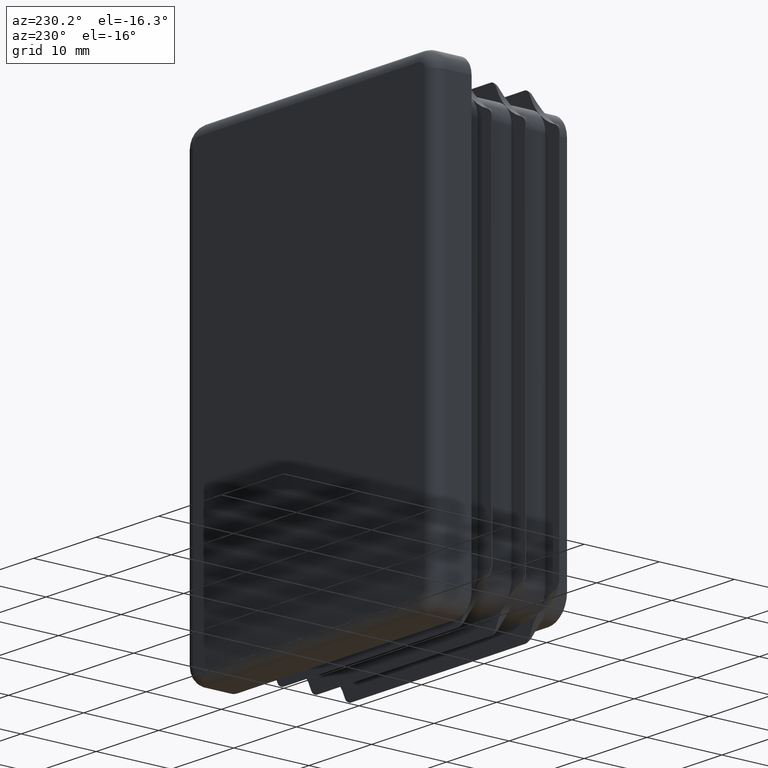
[diagram: clean part render]
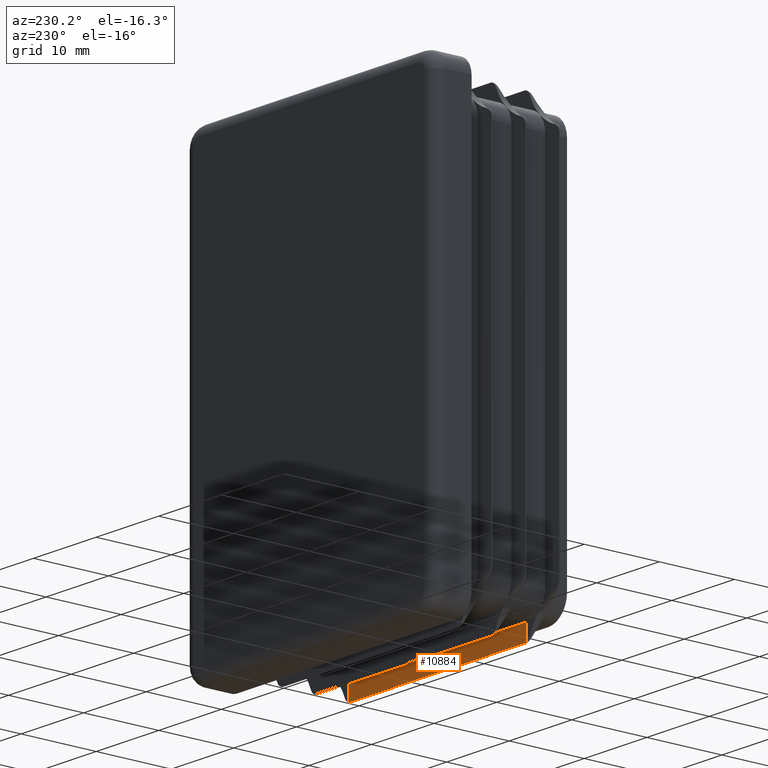
[diagram: same view with one face highlighted and labeled with its STEP entity id]
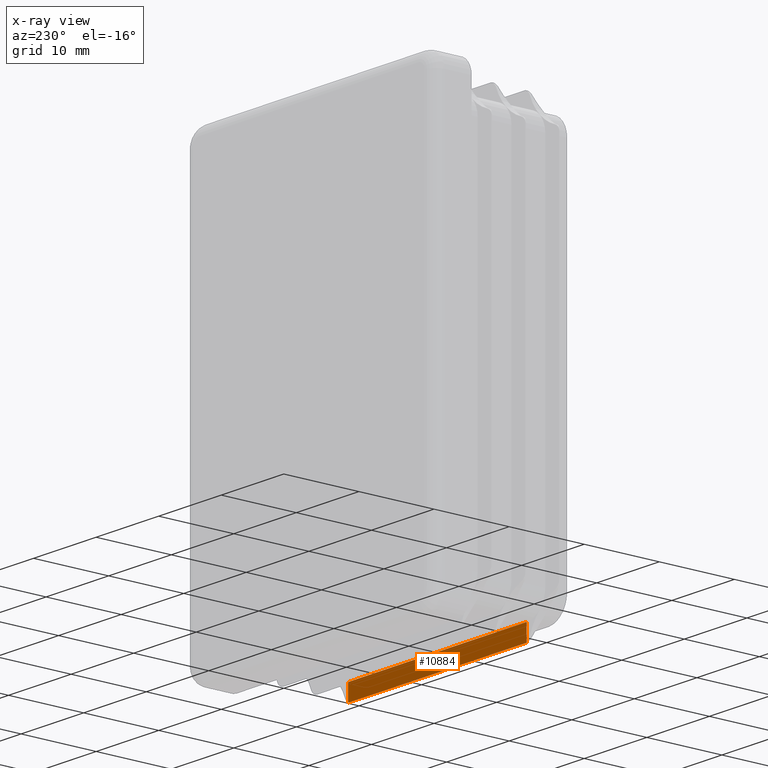
[diagram: x-ray of the same camera — body ghosted, the highlighted face saturated]
A machine part, auxiliary view. The second image highlights one B-rep face of the part: STEP entity #10884.
The next image is the same camera in x-ray: the body ghosted, the highlighted face saturated — about 0% of this face is hidden behind the body in this view.
In plain terms, the highlighted planar face has unit normal (0, -1, 0).
Its self-contained STEP definition (entity closure, byte-faithful):
#717 = EDGE_CURVE ( 'NONE', #15780, #12462, #8409, .T. ) ;
#939 = CARTESIAN_POINT ( 'NONE',  ( 14.24999999999999112, -12.10000000000000142, -27.25000000000008882 ) ) ;
#943 = ORIENTED_EDGE ( 'NONE', *, *, #9074, .T. ) ;
#1005 = DIRECTION ( 'NONE',  ( 0.000000000000000000, -1.000000000000000000, 0.000000000000000000 ) ) ;
#1429 = CIRCLE ( 'NONE', #18798, 1.000000000000000888 ) ;
#1559 = CARTESIAN_POINT ( 'NONE',  ( 14.24999999999999112, -12.10000000000000142, -27.25000000000008882 ) ) ;
#1872 = ORIENTED_EDGE ( 'NONE', *, *, #5895, .F. ) ;
#1974 = DIRECTION ( 'NONE',  ( -1.000000000000000000, 0.000000000000000000, 2.434699615406044232E-16 ) ) ;
#2178 = VERTEX_POINT ( 'NONE', #14565 ) ;
#2549 = LINE ( 'NONE', #8055, #17851 ) ;
#2615 = AXIS2_PLACEMENT_3D ( 'NONE', #939, #1005, #3898 ) ;
#3898 = DIRECTION ( 'NONE',  ( 0.000000000000000000, -0.000000000000000000, -1.000000000000000000 ) ) ;
#4796 = EDGE_CURVE ( 'NONE', #14703, #10340, #1429, .T. ) ;
#5393 = VECTOR ( 'NONE', #9201, 1000.000000000000000 ) ;
#5709 = ORIENTED_EDGE ( 'NONE', *, *, #15582, .T. ) ;
#5895 = EDGE_CURVE ( 'NONE', #12462, #2178, #2549, .T. ) ;
#6339 = LINE ( 'NONE', #11102, #8187 ) ;
#6505 = CARTESIAN_POINT ( 'NONE',  ( -14.25000000000001599, -12.10000000000000142, -27.25000000000008171 ) ) ;
#7155 = DIRECTION ( 'NONE',  ( -6.938893903907222067E-15, 0.000000000000000000, -1.000000000000000000 ) ) ;
#7401 = DIRECTION ( 'NONE',  ( -0.000000000000000000, -1.000000000000000000, 0.000000000000000000 ) ) ;
#8022 = CIRCLE ( 'NONE', #17617, 1.000000000000000888 ) ;
#8055 = CARTESIAN_POINT ( 'NONE',  ( 14.24999999999999112, -12.10000000000000142, -27.25000000000008882 ) ) ;
#8111 = DIRECTION ( 'NONE',  ( -1.000000000000000000, 0.000000000000000000, 2.434699615406044232E-16 ) ) ;
#8187 = VECTOR ( 'NONE', #8111, 1000.000000000000000 ) ;
#8193 = PLANE ( 'NONE',  #2615 ) ;
#8409 = LINE ( 'NONE', #1559, #5393 ) ;
#8488 = VERTEX_POINT ( 'NONE', #18477 ) ;
#8902 = DIRECTION ( 'NONE',  ( 0.000000000000000000, 0.000000000000000000, -1.000000000000000000 ) ) ;
#9074 = EDGE_CURVE ( 'NONE', #15780, #8488, #8022, .T. ) ;
#9201 = DIRECTION ( 'NONE',  ( 3.576749435003726573E-16, -0.000000000000000000, 1.000000000000000000 ) ) ;
#10340 = VERTEX_POINT ( 'NONE', #16397 ) ;
#10884 = ADVANCED_FACE ( 'NONE', ( #13204 ), #8193, .F. ) ;
#11050 = VECTOR ( 'NONE', #18415, 1000.000000000000000 ) ;
#11102 = CARTESIAN_POINT ( 'NONE',  ( 14.24999999999998934, -12.10000000000000142, -29.45000000000010232 ) ) ;
#11173 = EDGE_CURVE ( 'NONE', #14703, #2178, #14991, .T. ) ;
#11639 = DIRECTION ( 'NONE',  ( 0.000000000000000000, 1.000000000000000000, -0.000000000000000000 ) ) ;
#11817 = CARTESIAN_POINT ( 'NONE',  ( 14.24999999999999112, -12.10000000000000142, -27.25000000000008882 ) ) ;
#12462 = VERTEX_POINT ( 'NONE', #11817 ) ;
#13204 = FACE_OUTER_BOUND ( 'NONE', #16118, .T. ) ;
#13247 = ORIENTED_EDGE ( 'NONE', *, *, #717, .F. ) ;
#14565 = CARTESIAN_POINT ( 'NONE',  ( -14.24999999999999467, -12.10000000000000142, -27.24999999999999645 ) ) ;
#14703 = VERTEX_POINT ( 'NONE', #18128 ) ;
#14808 = CARTESIAN_POINT ( 'NONE',  ( -13.83497561360496775, -12.09999999999999964, -28.50000000000009592 ) ) ;
#14991 = LINE ( 'NONE', #6505, #11050 ) ;
#15582 = EDGE_CURVE ( 'NONE', #8488, #10340, #6339, .T. ) ;
#15780 = VERTEX_POINT ( 'NONE', #17171 ) ;
#16118 = EDGE_LOOP ( 'NONE', ( #18682, #18897, #1872, #13247, #943, #5709 ) ) ;
#16236 = CARTESIAN_POINT ( 'NONE',  ( 13.83497561360496775, -12.09999999999999964, -28.50000000000009592 ) ) ;
#16397 = CARTESIAN_POINT ( 'NONE',  ( -14.14722551352488722, -12.09999999999999964, -29.45000000000009521 ) ) ;
#17171 = CARTESIAN_POINT ( 'NONE',  ( 14.24999999999999112, -12.09999999999999964, -29.40981028720146284 ) ) ;
#17617 = AXIS2_PLACEMENT_3D ( 'NONE', #16236, #11639, #7155 ) ;
#17851 = VECTOR ( 'NONE', #1974, 1000.000000000000000 ) ;
#18128 = CARTESIAN_POINT ( 'NONE',  ( -14.25000000000001599, -12.09999999999999964, -29.40981028720144863 ) ) ;
#18415 = DIRECTION ( 'NONE',  ( 6.011449050409770311E-16, -0.000000000000000000, 1.000000000000000000 ) ) ;
#18477 = CARTESIAN_POINT ( 'NONE',  ( 14.14722551352486590, -12.09999999999999964, -29.45000000000010232 ) ) ;
#18682 = ORIENTED_EDGE ( 'NONE', *, *, #4796, .F. ) ;
#18798 = AXIS2_PLACEMENT_3D ( 'NONE', #14808, #7401, #8902 ) ;
#18897 = ORIENTED_EDGE ( 'NONE', *, *, #11173, .T. ) ;